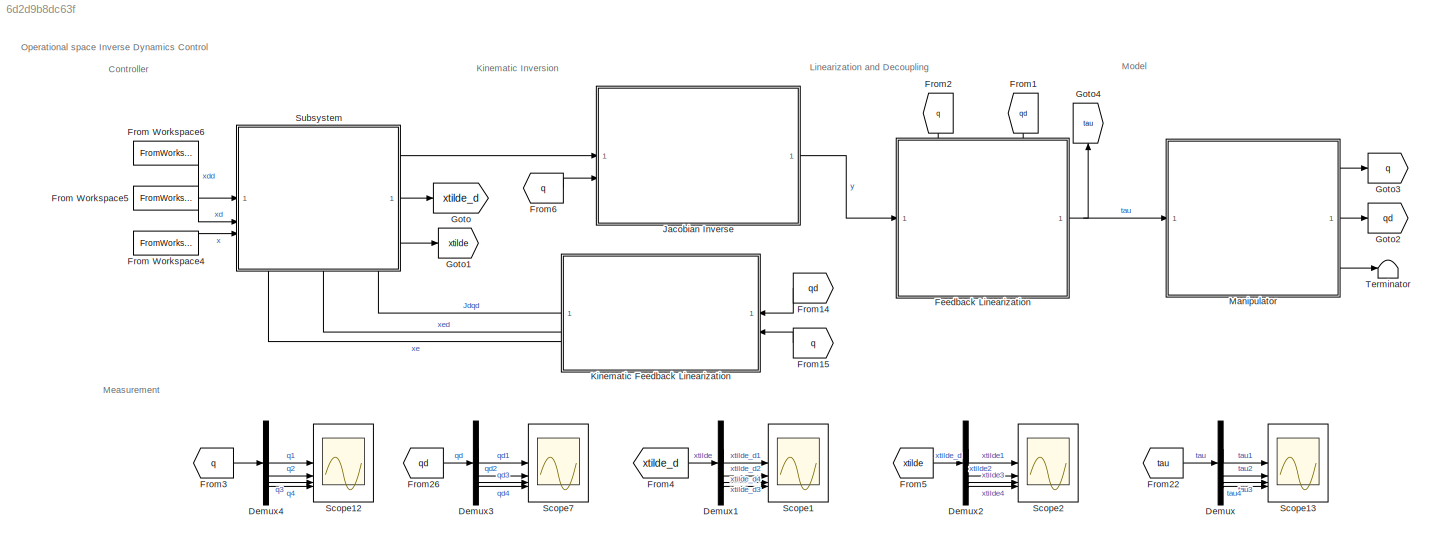
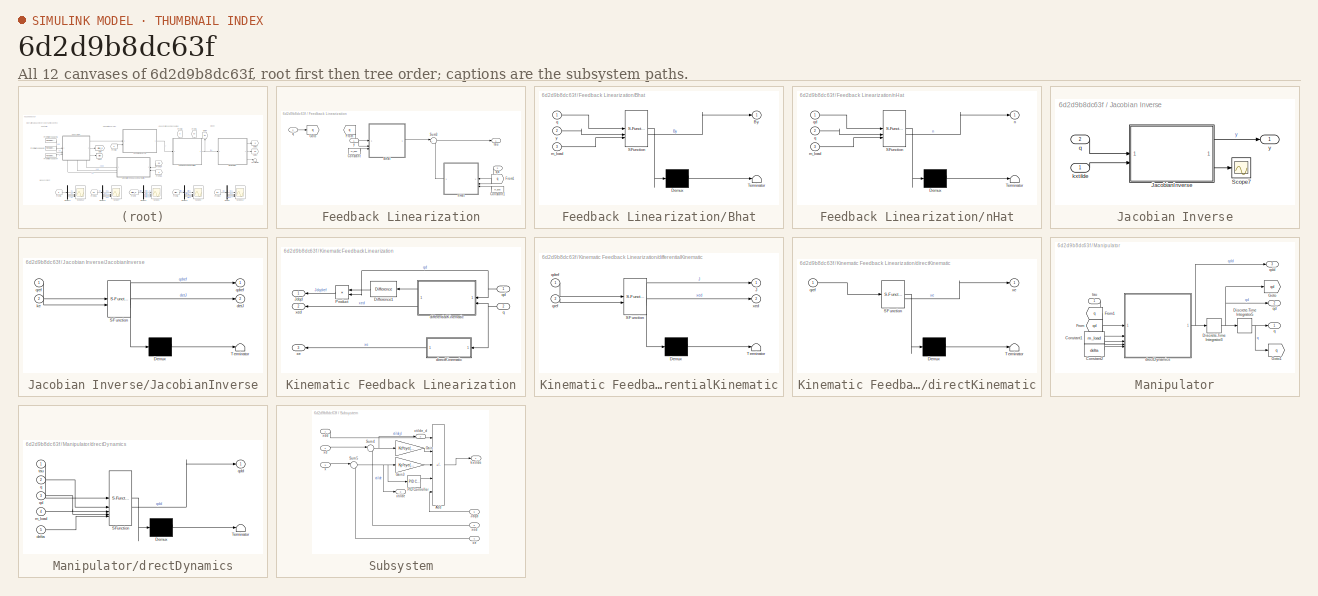
[diagram: thumbnail index - all 12 canvases of the model, root first then tree order]
MODEL slx_6d2d9b8dc63f
KIND model
CONFIG AbsTol = auto
CONFIG EnableMultiTasking = off
CONFIG FixedStep = auto
CONFIG MaxStep = auto
CONFIG MinStep = auto
CONFIG RelTol = 1e-3
CONFIG SampleTimeConstraint = Unconstrained
CONFIG SolverName = VariableStepAuto
CONFIG StartTime = 0.0
CONFIG StopTime = time(end)
BLOCK [Demux] Demux
BLOCK [Demux] Demux1
BLOCK [Demux] Demux2
BLOCK [Demux] Demux3
BLOCK [Demux] Demux4
BLOCK [SubSystem] Feedback Linearization
  PortSchema = {"entries":[{"content":{"sides":[{"content":{"connectorIds":["In1"]},"type":"ConnectorPlacement.EquallySpacedRectSide","uuid":"271cc0a6-b732-4626-ad15-944ba501bea2"},{"content":{"connectorIds":["Out1"],"side":"RIGHT"},"type":"ConnectorPlacement.EquallySpacedRectSide","uuid":"860ec51b-c9e7-4b7b-ae65-2fc3300d48f6"},{"content":{"connectorIds":["In2","In3"],"side":"TOP"},"type":"ConnectorPlacement.Equ...<+377ch>
BLOCK [SubSystem] Feedback Linearization/Bhat
  ErrorFcn = Stateflow.Translate.translate
  PermitHierarchicalResolution = ExplicitOnly
  SFBlockType = MATLAB Function
  TreatAsAtomicUnit = on
BLOCK [Demux] Feedback Linearization/Bhat/ Demux 
  Outputs = 1
BLOCK [S-Function] Feedback Linearization/Bhat/ SFunction 
  EnableBusSupport = on
  FunctionName = sf_sfun
  PortCounts = [3 2]
  SFcnIsStateOwnerBlock = off
  SFunctionDeploymentMode = off
  Tag = Stateflow S-Function 4
BLOCK [Terminator] Feedback Linearization/Bhat/ Terminator 
BLOCK [Outport] Feedback Linearization/Bhat/By
BLOCK [Inport] Feedback Linearization/Bhat/m_load
  Port = 3
BLOCK [Inport] Feedback Linearization/Bhat/q
BLOCK [Inport] Feedback Linearization/Bhat/y
  Port = 2
BLOCK [Constant] Feedback Linearization/Constant
  Value = m_load
BLOCK [Constant] Feedback Linearization/Constant1
  NameLocation = top
  Value = m_load
BLOCK [From] Feedback Linearization/From
  GotoTag = q
BLOCK [From] Feedback Linearization/From1
  GotoTag = q
  NameLocation = top
BLOCK [Goto] Feedback Linearization/Goto
  GotoTag = q
BLOCK [Sum] Feedback Linearization/Sum3
  Inputs = |++
BLOCK [SubSystem] Feedback Linearization/nHat
  ErrorFcn = Stateflow.Translate.translate
  NameLocation = top
  PermitHierarchicalResolution = ExplicitOnly
  SFBlockType = MATLAB Function
  TreatAsAtomicUnit = on
BLOCK [Demux] Feedback Linearization/nHat/ Demux 
  Outputs = 1
BLOCK [S-Function] Feedback Linearization/nHat/ SFunction 
  EnableBusSupport = on
  FunctionName = sf_sfun
  PortCounts = [3 2]
  SFcnIsStateOwnerBlock = off
  SFunctionDeploymentMode = off
  Tag = Stateflow S-Function 3
BLOCK [Terminator] Feedback Linearization/nHat/ Terminator 
BLOCK [Inport] Feedback Linearization/nHat/m_load
  Port = 3
BLOCK [Outport] Feedback Linearization/nHat/n
BLOCK [Inport] Feedback Linearization/nHat/q
  Port = 2
BLOCK [Inport] Feedback Linearization/nHat/qd
BLOCK [Inport] Feedback Linearization/q
  Port = 2
BLOCK [Inport] Feedback Linearization/qd
  Port = 3
BLOCK [Outport] Feedback Linearization/tau
BLOCK [Inport] Feedback Linearization/y
BLOCK [FromWorkspace] From Workspace4
  VariableName = timesample
BLOCK [FromWorkspace] From Workspace5
  VariableName = timesample_dot
BLOCK [FromWorkspace] From Workspace6
  VariableName = timesample_ddot
BLOCK [From] From1
  GotoTag = qd
  NameLocation = left
BLOCK [From] From14
  GotoTag = qd
  NameLocation = top
BLOCK [From] From15
  GotoTag = q
  NameLocation = top
BLOCK [From] From2
  GotoTag = q
  NameLocation = left
BLOCK [From] From22
  GotoTag = tau
BLOCK [From] From26
  GotoTag = qd
BLOCK [From] From3
  GotoTag = q
BLOCK [From] From4
  GotoTag = xtilde_d
BLOCK [From] From5
  GotoTag = xtilde
BLOCK [From] From6
  GotoTag = q
BLOCK [Goto] Goto
  GotoTag = xtilde_d
BLOCK [Goto] Goto1
  GotoTag = xtilde
BLOCK [Goto] Goto2
  GotoTag = qd
BLOCK [Goto] Goto3
  GotoTag = q
BLOCK [Goto] Goto4
  GotoTag = tau
  NameLocation = right
BLOCK [SubSystem] Jacobian Inverse
BLOCK [SubSystem] Jacobian Inverse/JacobianInverse
  ErrorFcn = Stateflow.Translate.translate
  PermitHierarchicalResolution = ExplicitOnly
  SFBlockType = MATLAB Function
  TreatAsAtomicUnit = on
BLOCK [Demux] Jacobian Inverse/JacobianInverse/ Demux 
  Outputs = 1
BLOCK [S-Function] Jacobian Inverse/JacobianInverse/ SFunction 
  EnableBusSupport = on
  FunctionName = sf_sfun
  PortCounts = [2 3]
  SFcnIsStateOwnerBlock = off
  SFunctionDeploymentMode = off
  Tag = Stateflow S-Function 6
BLOCK [Terminator] Jacobian Inverse/JacobianInverse/ Terminator 
BLOCK [Outport] Jacobian Inverse/JacobianInverse/detJ
  Port = 2
BLOCK [Inport] Jacobian Inverse/JacobianInverse/ke
  Port = 2
BLOCK [Outport] Jacobian Inverse/JacobianInverse/qdref
BLOCK [Inport] Jacobian Inverse/JacobianInverse/qref
BLOCK [Scope] Jacobian Inverse/Scope7
  Floating = off
  NumInputPorts = 1
  ScopeSpecificationString = Simulink.scopes.TimeScopeBlockCfg('CurrentConfiguration', extmgr.ConfigurationSet(extmgr.Configuration('Core','General UI',true),extmgr.Configuration('Core','Source UI',true),extmgr.Configuration('Sources','WiredSimulink',true,'DataLoggingVariableName','ScopeData1'),extmgr.Configuration('Visuals','Time Domain',true,'SerializedDisplays',{struct('MinYLimReal','-1.00000','MaxYLimReal','1.00000','YLab...<+1414ch>
BLOCK [Inport] Jacobian Inverse/kxtilde
BLOCK [Inport] Jacobian Inverse/q
  Port = 2
BLOCK [Outport] Jacobian Inverse/y
BLOCK [SubSystem] Kinematic Feedback Linearization
BLOCK [Reference] Kinematic Feedback Linearization/Difference1  REF=simulink/Discrete/Difference
  NameLocation = top
  SourceBlock = simulink/Discrete/Difference
  SourceType = Difference
BLOCK [Outport] Kinematic Feedback Linearization/Jdqd
  NameLocation = top
BLOCK [Product] Kinematic Feedback Linearization/Product
  Multiplication = Matrix(*)
  NameLocation = top
BLOCK [SubSystem] Kinematic Feedback Linearization/differentialKinematic
  ErrorFcn = Stateflow.Translate.translate
  PermitHierarchicalResolution = ExplicitOnly
  SFBlockType = MATLAB Function
  TreatAsAtomicUnit = on
BLOCK [Demux] Kinematic Feedback Linearization/differentialKinematic/ Demux 
  Outputs = 1
BLOCK [S-Function] Kinematic Feedback Linearization/differentialKinematic/ SFunction 
  EnableBusSupport = on
  FunctionName = sf_sfun
  PortCounts = [2 3]
  SFcnIsStateOwnerBlock = off
  SFunctionDeploymentMode = off
  Tag = Stateflow S-Function 2
BLOCK [Terminator] Kinematic Feedback Linearization/differentialKinematic/ Terminator 
BLOCK [Outport] Kinematic Feedback Linearization/differentialKinematic/J
BLOCK [Inport] Kinematic Feedback Linearization/differentialKinematic/qdref
BLOCK [Inport] Kinematic Feedback Linearization/differentialKinematic/qref
  Port = 2
BLOCK [Outport] Kinematic Feedback Linearization/differentialKinematic/xed
  Port = 2
BLOCK [SubSystem] Kinematic Feedback Linearization/directKinematic
  ErrorFcn = Stateflow.Translate.translate
  NameLocation = top
  PermitHierarchicalResolution = ExplicitOnly
  SFBlockType = MATLAB Function
  TreatAsAtomicUnit = on
BLOCK [Demux] Kinematic Feedback Linearization/directKinematic/ Demux 
  Outputs = 1
BLOCK [S-Function] Kinematic Feedback Linearization/directKinematic/ SFunction 
  EnableBusSupport = on
  FunctionName = sf_sfun
  PortCounts = [1 2]
  SFcnIsStateOwnerBlock = off
  SFunctionDeploymentMode = off
  Tag = Stateflow S-Function 5
BLOCK [Terminator] Kinematic Feedback Linearization/directKinematic/ Terminator 
BLOCK [Inport] Kinematic Feedback Linearization/directKinematic/qref
BLOCK [Outport] Kinematic Feedback Linearization/directKinematic/xe
BLOCK [Inport] Kinematic Feedback Linearization/q
  Port = 2
BLOCK [Inport] Kinematic Feedback Linearization/qd
BLOCK [Outport] Kinematic Feedback Linearization/xe
  NameLocation = top
  Port = 3
BLOCK [Outport] Kinematic Feedback Linearization/xed
  NameLocation = top
  Port = 2
BLOCK [SubSystem] Manipulator
BLOCK [Constant] Manipulator/Constant1
  Value = m_load
BLOCK [Constant] Manipulator/Constant2
  Value = delta
BLOCK [DiscreteIntegrator] Manipulator/Discrete-Time Integrator3
  ICPrevOutput = DiscIntNeverNeededParam
  ICPrevScaledInput = DiscIntNeverNeededParam
  InitialCondition = [0; 0; 0; 0]
  InitialConditionSetting = Auto
  SampleTime = 0.001
BLOCK [DiscreteIntegrator] Manipulator/Discrete-Time Integrator5
  ICPrevOutput = DiscIntNeverNeededParam
  ICPrevScaledInput = DiscIntNeverNeededParam
  InitialCondition = [-1.5706; 0.7851; 0.5000; -0.7855]
  InitialConditionSetting = Auto
  SampleTime = 0.001
BLOCK [From] Manipulator/From
  GotoTag = qd
BLOCK [From] Manipulator/From1
  GotoTag = q
BLOCK [Goto] Manipulator/Goto
  GotoTag = qd
BLOCK [Goto] Manipulator/Goto1
  GotoTag = q
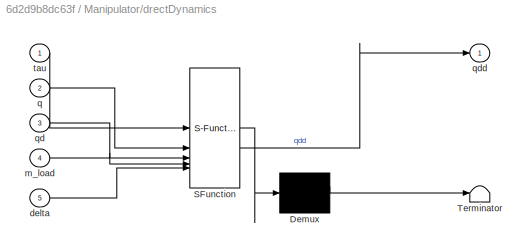
BLOCK [SubSystem] Manipulator/drectDynamics
  ErrorFcn = Stateflow.Translate.translate
  PermitHierarchicalResolution = ExplicitOnly
  SFBlockType = MATLAB Function
  TreatAsAtomicUnit = on
BLOCK [Demux] Manipulator/drectDynamics/ Demux 
  Outputs = 1
BLOCK [S-Function] Manipulator/drectDynamics/ SFunction 
  EnableBusSupport = on
  FunctionName = sf_sfun
  PortCounts = [5 2]
  SFcnIsStateOwnerBlock = off
  SFunctionDeploymentMode = off
  Tag = Stateflow S-Function 1
BLOCK [Terminator] Manipulator/drectDynamics/ Terminator 
BLOCK [Inport] Manipulator/drectDynamics/delta
  Port = 5
BLOCK [Inport] Manipulator/drectDynamics/m_load
  Port = 4
BLOCK [Inport] Manipulator/drectDynamics/q
  Port = 2
BLOCK [Inport] Manipulator/drectDynamics/qd
  Port = 3
BLOCK [Outport] Manipulator/drectDynamics/qdd
BLOCK [Inport] Manipulator/drectDynamics/tau
BLOCK [Outport] Manipulator/q
BLOCK [Outport] Manipulator/qd
  Port = 2
BLOCK [Outport] Manipulator/qdd
  Port = 3
BLOCK [Inport] Manipulator/tau
BLOCK [Scope] Scope1
  Floating = off
  NumInputPorts = 4
  ScopeSpecificationString = Simulink.scopes.TimeScopeBlockCfg('CurrentConfiguration', extmgr.ConfigurationSet(extmgr.Configuration('Core','General UI',true),extmgr.Configuration('Core','Source UI',true),extmgr.Configuration('Sources','WiredSimulink',true,'DataLoggingVariableName','ScopeData1'),extmgr.Configuration('Visuals','Time Domain',true,'SerializedDisplays',{struct('MinYLimReal','0.2536','MaxYLimReal','0.4536','YLabelR...<+3444ch>
BLOCK [Scope] Scope12
  Floating = off
  NumInputPorts = 4
  ScopeSpecificationString = Simulink.scopes.TimeScopeBlockCfg('CurrentConfiguration', extmgr.ConfigurationSet(extmgr.Configuration('Core','General UI',true),extmgr.Configuration('Core','Source UI',true),extmgr.Configuration('Sources','WiredSimulink',true,'DataLoggingVariableName','ScopeData4'),extmgr.Configuration('Visuals','Time Domain',true,'SerializedDisplays',{struct('MinYLimReal','-2.38977','MaxYLimReal','5.50103','YLab...<+3397ch>
BLOCK [Scope] Scope13
  Floating = off
  NumInputPorts = 4
  ScopeSpecificationString = Simulink.scopes.TimeScopeBlockCfg('CurrentConfiguration', extmgr.ConfigurationSet(extmgr.Configuration('Core','General UI',true),extmgr.Configuration('Core','Source UI',true),extmgr.Configuration('Sources','WiredSimulink',true,'DataLoggingVariableName','ScopeData5'),extmgr.Configuration('Visuals','Time Domain',true,'SerializedDisplays',{struct('MinYLimReal','-3399.09388','MaxYLimReal','1020.706','...<+3425ch>
BLOCK [Scope] Scope2
  Floating = off
  NumInputPorts = 4
  ScopeSpecificationString = Simulink.scopes.TimeScopeBlockCfg('CurrentConfiguration', extmgr.ConfigurationSet(extmgr.Configuration('Core','General UI',true),extmgr.Configuration('Core','Source UI',true),extmgr.Configuration('Sources','WiredSimulink',true,'DataLoggingVariableName','ScopeData2'),extmgr.Configuration('Visuals','Time Domain',true,'SerializedDisplays',{struct('MinYLimReal','-0.00286','MaxYLimReal','0.00122','YLab...<+3464ch>
BLOCK [Scope] Scope7
  Floating = off
  NumInputPorts = 4
  ScopeSpecificationString = Simulink.scopes.TimeScopeBlockCfg('CurrentConfiguration', extmgr.ConfigurationSet(extmgr.Configuration('Core','General UI',true),extmgr.Configuration('Core','Source UI',true),extmgr.Configuration('Sources','WiredSimulink',true,'DataLoggingVariableName','ScopeData3'),extmgr.Configuration('Visuals','Time Domain',true,'SerializedDisplays',{struct('MinYLimReal','-3.13496','MaxYLimReal','1.3341','YLabe...<+3396ch>
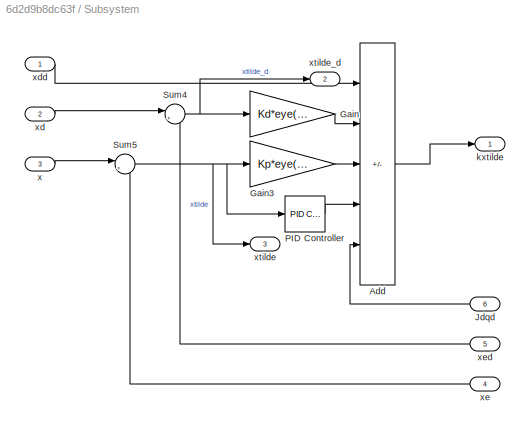
BLOCK [SubSystem] Subsystem
  PortSchema = {"entries":[{"content":{"sides":[{"content":{"connectorIds":["In1","In2","In3"]},"type":"ConnectorPlacement.EquallySpacedRectSide","uuid":"d5d0fa15-0dfc-4de5-8b58-3094a24c3543"},{"content":{"connectorIds":["Out1","Out2","Out3"],"side":"RIGHT"},"type":"ConnectorPlacement.EquallySpacedRectSide","uuid":"dc48d10e-f543-4bb1-aabf-9e7d159af175"},{"content":{"side":"TOP"},"type":"ConnectorPlacement.Equall...<+409ch>
BLOCK [Sum] Subsystem/Add
  IconShape = rectangular
  Inputs = ++++-
BLOCK [Gain] Subsystem/Gain
  Gain = Kd*eye(4)
  Multiplication = Matrix(K*u)
BLOCK [Gain] Subsystem/Gain3
  Gain = Kp*eye(4)
  Multiplication = Matrix(K*u)
BLOCK [Inport] Subsystem/Jdqd
  Port = 6
BLOCK [Reference] Subsystem/PID Controller  REF=slpidlib/PID Controller
  LibrarySourceBlock = simulink/Continuous/PID Controller
  SourceBlock = slpidlib/PID Controller
  SourceType = PID 1dof
BLOCK [Sum] Subsystem/Sum4
  Inputs = |+-
BLOCK [Sum] Subsystem/Sum5
  Inputs = |+-
BLOCK [Outport] Subsystem/kxtilde
BLOCK [Inport] Subsystem/x
  Port = 3
BLOCK [Inport] Subsystem/xd
  Port = 2
BLOCK [Inport] Subsystem/xdd
BLOCK [Inport] Subsystem/xe
  Port = 4
BLOCK [Inport] Subsystem/xed
  Port = 5
BLOCK [Outport] Subsystem/xtilde
  Port = 3
BLOCK [Outport] Subsystem/xtilde_d
  Port = 2
BLOCK [Terminator] Terminator
ANNOTATION (root): Controller
ANNOTATION (root): Kinematic Inversion
ANNOTATION (root): Linearization and Decoupling
ANNOTATION (root): Measurement
ANNOTATION (root): Model
ANNOTATION (root): Operational space Inverse Dynamics Control
LINE Demux1:1 -> Scope1:1
LINE Demux1:2 -> Scope1:2
LINE Demux1:3 -> Scope1:3
LINE Demux1:4 -> Scope1:4
LINE Demux2:1 -> Scope2:1
LINE Demux2:2 -> Scope2:2
LINE Demux2:3 -> Scope2:3
LINE Demux2:4 -> Scope2:4
LINE Demux3:1 -> Scope7:1
LINE Demux3:2 -> Scope7:2
LINE Demux3:3 -> Scope7:3
LINE Demux3:4 -> Scope7:4
LINE Demux4:1 -> Scope12:1
LINE Demux4:2 -> Scope12:2
LINE Demux4:3 -> Scope12:3
LINE Demux4:4 -> Scope12:4
LINE Demux:1 -> Scope13:1
LINE Demux:2 -> Scope13:2
LINE Demux:3 -> Scope13:3
LINE Demux:4 -> Scope13:4
LINE Feedback Linearization/Bhat:1 -> Feedback Linearization/Sum3:1
LINE Feedback Linearization/Constant1:1 -> Feedback Linearization/nHat:3
LINE Feedback Linearization/Constant:1 -> Feedback Linearization/Bhat:3
LINE Feedback Linearization/From1:1 -> Feedback Linearization/nHat:2
LINE Feedback Linearization/From:1 -> Feedback Linearization/Bhat:1
LINE Feedback Linearization/Sum3:1 -> Feedback Linearization/tau:1
LINE Feedback Linearization/nHat:1 -> Feedback Linearization/Sum3:2
LINE Feedback Linearization/q:1 -> Feedback Linearization/Goto:1
LINE Feedback Linearization/qd:1 -> Feedback Linearization/nHat:1
LINE Feedback Linearization/y:1 -> Feedback Linearization/Bhat:2
NET Feedback Linearization:1 -> Goto4:1, Manipulator:1
LINE From Workspace4:1 -> Subsystem:3
LINE From Workspace5:1 -> Subsystem:2
LINE From Workspace6:1 -> Subsystem:1
LINE From14:1 -> Kinematic Feedback Linearization:1
LINE From15:1 -> Kinematic Feedback Linearization:2
LINE From1:1 -> Feedback Linearization:3
LINE From22:1 -> Demux:1
LINE From26:1 -> Demux3:1
LINE From2:1 -> Feedback Linearization:2
LINE From3:1 -> Demux4:1
LINE From4:1 -> Demux1:1
LINE From5:1 -> Demux2:1
LINE From6:1 -> Jacobian Inverse:2
LINE Jacobian Inverse/JacobianInverse:1 -> Jacobian Inverse/y:1
LINE Jacobian Inverse/JacobianInverse:2 -> Jacobian Inverse/Scope7:1
LINE Jacobian Inverse/kxtilde:1 -> Jacobian Inverse/JacobianInverse:2
LINE Jacobian Inverse/q:1 -> Jacobian Inverse/JacobianInverse:1
LINE Jacobian Inverse:1 -> Feedback Linearization:1
LINE Kinematic Feedback Linearization/Difference1:1 -> Kinematic Feedback Linearization/Product:1
LINE Kinematic Feedback Linearization/Product:1 -> Kinematic Feedback Linearization/Jdqd:1
LINE Kinematic Feedback Linearization/differentialKinematic:1 -> Kinematic Feedback Linearization/Difference1:1
LINE Kinematic Feedback Linearization/differentialKinematic:2 -> Kinematic Feedback Linearization/xed:1
LINE Kinematic Feedback Linearization/directKinematic:1 -> Kinematic Feedback Linearization/xe:1
NET Kinematic Feedback Linearization/q:1 -> Kinematic Feedback Linearization/differentialKinematic:2, Kinematic Feedback Linearization/directKinematic:1
NET Kinematic Feedback Linearization/qd:1 -> Kinematic Feedback Linearization/Product:2, Kinematic Feedback Linearization/differentialKinematic:1
LINE Kinematic Feedback Linearization:1 -> Subsystem:6
LINE Kinematic Feedback Linearization:2 -> Subsystem:5
LINE Kinematic Feedback Linearization:3 -> Subsystem:4
LINE Manipulator/Constant1:1 -> Manipulator/drectDynamics:4
LINE Manipulator/Constant2:1 -> Manipulator/drectDynamics:5
NET Manipulator/Discrete-Time Integrator3:1 -> Manipulator/Discrete-Time Integrator5:1, Manipulator/Goto:1, Manipulator/qd:1
NET Manipulator/Discrete-Time Integrator5:1 -> Manipulator/Goto1:1, Manipulator/q:1
LINE Manipulator/From1:1 -> Manipulator/drectDynamics:2
LINE Manipulator/From:1 -> Manipulator/drectDynamics:3
NET Manipulator/drectDynamics:1 -> Manipulator/Discrete-Time Integrator3:1, Manipulator/qdd:1
LINE Manipulator/tau:1 -> Manipulator/drectDynamics:1
LINE Manipulator:1 -> Goto3:1
LINE Manipulator:2 -> Goto2:1
LINE Manipulator:3 -> Terminator:1
LINE Subsystem/Add:1 -> Subsystem/kxtilde:1
LINE Subsystem/Gain3:1 -> Subsystem/Add:3
LINE Subsystem/Gain:1 -> Subsystem/Add:2
LINE Subsystem/Jdqd:1 -> Subsystem/Add:5
LINE Subsystem/PID Controller:1 -> Subsystem/Add:4
NET Subsystem/Sum4:1 -> Subsystem/Gain:1, Subsystem/xtilde_d:1
NET Subsystem/Sum5:1 -> Subsystem/Gain3:1, Subsystem/PID Controller:1, Subsystem/xtilde:1
LINE Subsystem/x:1 -> Subsystem/Sum5:1
LINE Subsystem/xd:1 -> Subsystem/Sum4:1
LINE Subsystem/xdd:1 -> Subsystem/Add:1
LINE Subsystem/xe:1 -> Subsystem/Sum5:2
LINE Subsystem/xed:1 -> Subsystem/Sum4:2
LINE Subsystem:1 -> Jacobian Inverse:1
LINE Subsystem:2 -> Goto:1
LINE Subsystem:3 -> Goto1:1
note: NET lines group one-source signal fan-out (src -> all destinations, sorted); 1:1 wires keep LINE
CHART Manipulator/drectDynamics states=1 transitions=1
  STATE_LABEL 'eML_blk_kernel()'
  STATE_LABEL 'SCRIPT:\nfunction qdd = directDynamics(tau,q,qd,m_load,delta)\n\n%% Needed joint position and velocity\nq1 = q(1,:);\nq2 = q(2,:);\nq3 = q(3,:);\nqd1 = qd(1,:);\nqd2 = qd(2,:);\n\n%% Dynamic Parameters\na1 = 0.5; a2 = 0.5; d0 = 1;\nml1 = 20; ml2 = 20; ml3 = 10;\nIl1 = 4; Il2 = 4; Il4 = 1;\nIm1 = 0.01; Im2 = 0.01; Im3 = 0.005; Im4 = 0.001;\nl1 = 0.25; l2 = 0.25;\nkr1 = 1; kr2 = 1; kr3 = 50; kr4 = 20;\nFm1 =  0.0000...<+2498ch>'
CHART Kinematic Feedback Linearization/differentialKinematic states=1 transitions=1
  STATE_LABEL 'eML_blk_kernel()'
  STATE_LABEL 'SCRIPT:\nfunction [J, xed] = Jacobian(qdref, qref)\n\n    % Init the SCARA manipulator parameters\n    a1 = .5; a2 = .5;\n    theta1 = qref(1,:); theta2 = qref(2,:);\n    \n    %% Geometric Jacobian Matrix\n    Ja = [-a1*sin(theta1) - a2*sin(theta1 + theta2), - a2*sin(theta1 + theta2), 0, 0;\n        a1*cos(theta1) + a2*cos(theta1 + theta2), a2*cos(theta1 + theta2), 0, 0;\n        0, 0, -1, 0;\n        1, 1,...<+240ch>'
CHART Feedback Linearization/nHat states=1 transitions=1
  STATE_LABEL 'eML_blk_kernel()'
  STATE_LABEL 'SCRIPT:\nfunction n = nHat(qd,q,m_load)\n    \n    q1 = q(1,:);\n    q2 = q(2,:);\n    q3 = q(3,:);\n    qd1 = qd(1,:);\n    qd2 = qd(2,:);\n    \n    %% parametri\n    a1 = 0.5;\n    a2 = 0.5;\n    d0 = 1;\n    \n    ml1 = 20;\n    ml2 = 20;\n    ml3 = 10;\n    l1 = 0.25;\n    l2 = 0.25;\n    kr1 = 1;\n    kr2 = 1;\n    kr3 = 50;\n    kr4 = 20;\n    Fm1 =  0.00005;\n    Fm2 =  0.00005;\n    Fm3 = 0.01;\n    Fm4 = 0.005;\n ...<+1624ch>'
CHART Feedback Linearization/Bhat states=1 transitions=1
  STATE_LABEL 'eML_blk_kernel()'
  STATE_LABEL 'SCRIPT:\nfunction By = Bhat(q,y,m_load)\n    \n    q1 = q(1,:);\n    q2 = q(2,:);\n    q3 = q(3,:);\n    q4 = q(4,:);\n    \n    %% parametri\n    a1 = 0.5;\n    a2 = 0.5;\n    d0 = 1;\n    \n    ml1 = 20;\n    ml2 = 20;\n    ml3 = 10;\n    Il1 = 4;\n    Il2 = 4;\n    Il4 = 1;\n    Im1 = 0.01;\n    Im2 = 0.01;\n    Im3 = 0.005;\n    Im4 = 0.001;\n    l1 = 0.25;\n    l2 = 0.25;\n    kr1 = 1;\n    kr2 = 1;\n    kr3 = 50;\n    ...<+1584ch>'
CHART Kinematic Feedback Linearization/directKinematic states=1 transitions=1
  STATE_LABEL 'eML_blk_kernel()'
  STATE_LABEL 'SCRIPT:\nfunction xe = directKinematic(qref)\n    \n    %% Init the SCARA manipulator parameters and Joint variables\n    a1 = .5; a2 = .5; d0 = 1;\n    theta1 = qref(1,:); theta2 = qref(2,:); d3 = qref(3,:); theta4 = qref(4,:);\n\n    %% Forward Kinematics link for the SCARA\n    k = [a1*cos(theta1) + a2*cos(theta1 + theta2);\n        a1*sin(theta1) + a2*sin(theta1 + theta2);\n        d0 - d3;\n        thet...<+41ch>'
CHART Jacobian Inverse/JacobianInverse states=1 transitions=1
  STATE_LABEL 'eML_blk_kernel()'
  STATE_LABEL 'SCRIPT:\nfunction [qdref, detJ] = inverseJacobian(qref, ke) % q = [theta1; theta2]\n\n    % Init the SCARA manipulator parameters\n    a1 = .5; a2 = .5;\n\n    theta1 = qref(1,:); theta2 = qref(2,:);\n    %% Geometric Jacobian Matrix\n    J = [-a1*sin(theta1) - a2*sin(theta1 + theta2), - a2*sin(theta1 + theta2), 0, 0;\n        a1*cos(theta1) + a2*cos(theta1 + theta2), a2*cos(theta1 + theta2), 0, 0;\n       ...<+356ch>'
CHART  states=0 transitions=0
CHART  states=0 transitions=0
CHART  states=0 transitions=0
CHART  states=0 transitions=0
CHART  states=0 transitions=0
CHART  states=0 transitions=0
